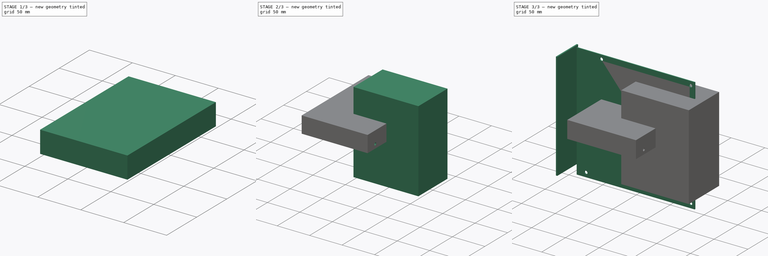
[diagram: build sequence overview — one tinted view per stage of 3, left to right]
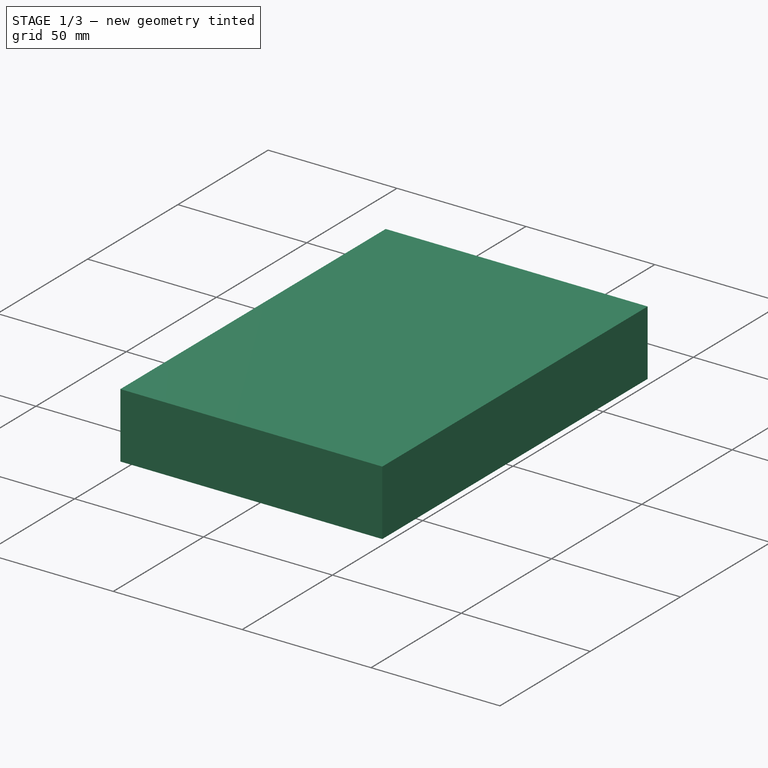
[diagram: stage 1 of 3 — iso view after this stage's code; geometry added in this stage tinted green]
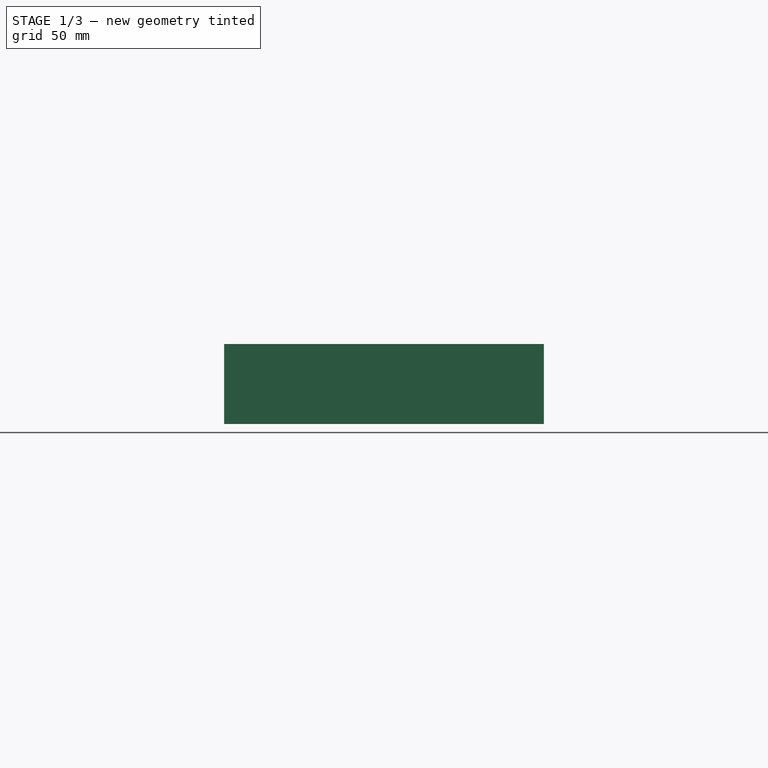
[diagram: stage 1 of 3 — front view after this stage's code; geometry added in this stage tinted green]
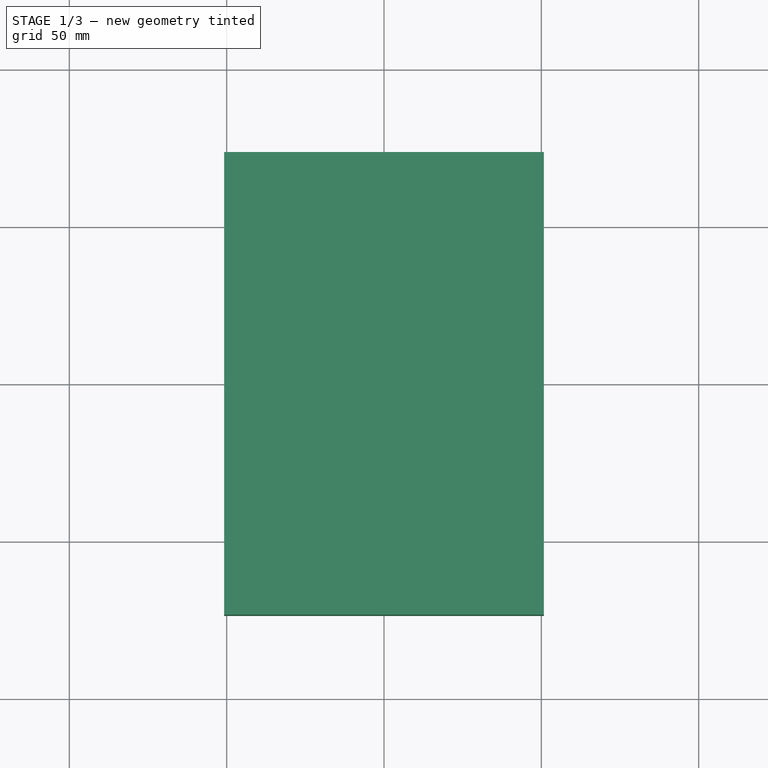
[diagram: stage 1 of 3 — top view after this stage's code; geometry added in this stage tinted green]
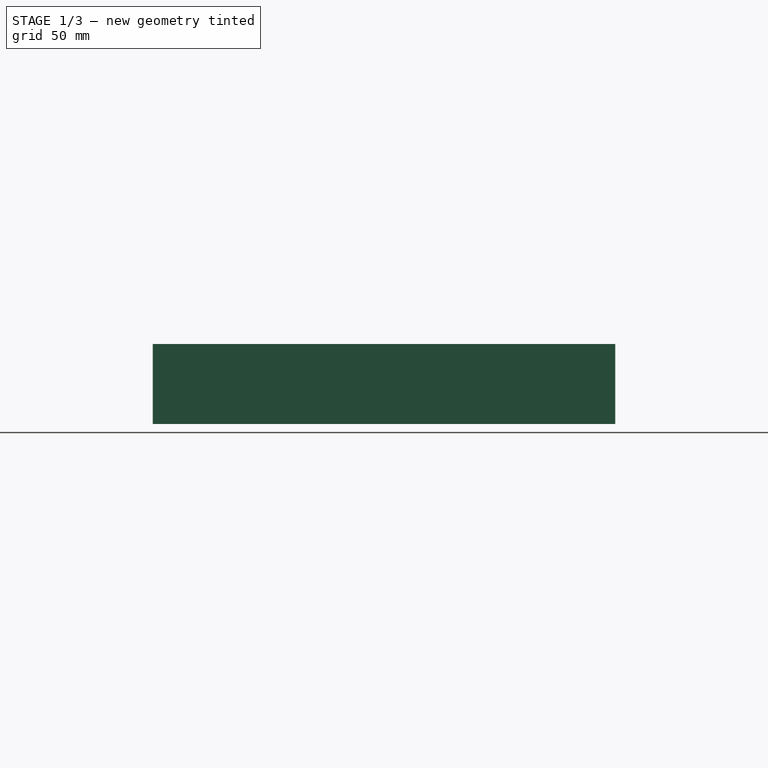
[diagram: stage 1 of 3 — right view after this stage's code; geometry added in this stage tinted green]
FCSTD DOCUMENT  (FreeCAD 1.0RUnknown)
Label: Components
License: All rights reserved
LicenseURL: https://en.wikipedia.org/wiki/All_rights_reserved
objects: Sketcher::SketchObject×7, PartDesign::Pad×4, PartDesign::Body×3, PartDesign::Pocket×3
note: 38 computed .brp shape members not serialized (recipe doc carries the construction recipe); baked Part::Feature solids carry a one-line shape summary decoded from their .brp

FEATURE [PartDesign::Body] Body009  label="PSU"
  AllowCompound = false
  Group = -> [Sketch042,Pad017,Sketch043,Pocket]
  Origin = -> Origin009
  Placement = pos=(0,0,2.59e-14) rot=(0,0,1;0rad)
  Tip = -> Pocket
FEATURE [Sketcher::SketchObject] Sketch044
  ArcFitTolerance = 1e-06
  AttachmentSupport = -> [XY_Plane010]
  FullyConstrained = true
  MakeInternals = false
  MapMode = 5
  sketch-geometry (5):
    g0: LineSegment StartX=-50.8 StartY=-73.5 StartZ=0 EndX=50.8 EndY=-73.5 EndZ=0
    g1: LineSegment StartX=50.8 StartY=-73.5 StartZ=0 EndX=50.8 EndY=73.5 EndZ=0
    g2: LineSegment StartX=50.8 StartY=73.5 StartZ=0 EndX=-50.8 EndY=73.5 EndZ=0
    g3: LineSegment StartX=-50.8 StartY=73.5 StartZ=0 EndX=-50.8 EndY=-73.5 EndZ=0
    g4: GeomPoint [constr] X=0 Y=0 Z=0
  constraints (12):
    c: Coincident(g0,g1)
    c: Coincident(g1,g2)
    c: Coincident(g2,g3)
    c: Coincident(g3,g0)
    c: Horizontal(g0)
    c: Horizontal(g2)
    c: Vertical(g1)
    c: Vertical(g3)
    c: Symmetric(g2,g0,g4)
    c: Distance(g1,g3) = 101.6
    c: Distance(g0,g2) = 147
    c: Coincident(g4,g-1)
FEATURE [PartDesign::Pad] Pad018
  Direction = (0,0,1)
  Length = 25.4
  Length2 = 10
  Profile = -> Sketch044
  ReferenceAxis = -> Sketch044 [N_Axis]
  Refine = true
  Suppressed = false
  Type = 0
FEATURE [Sketcher::SketchObject] Sketch045
  ArcFitTolerance = 1e-06
  AttachmentSupport = -> [Pad018]
  ExternalGeometry = -> [Pad018]
  FullyConstrained = false
  MakeInternals = false
  MapMode = 5
  Placement = pos=(0,73.5,0) rot=(0,0.707107,0.707107;3.14159rad)
  sketch-geometry (4):
    g0: LineSegment StartX=-42.6059 StartY=0 StartZ=0 EndX=3.18843 EndY=0 EndZ=0
    g1: LineSegment StartX=3.18843 StartY=0 StartZ=0 EndX=3.18843 EndY=8.48865 EndZ=0
    g2: LineSegment StartX=3.18843 StartY=8.48865 StartZ=0 EndX=-42.6059 EndY=8.48865 EndZ=0
    g3: LineSegment StartX=-42.6059 StartY=8.48865 StartZ=0 EndX=-42.6059 EndY=0 EndZ=0
  constraints (9):
    c: Coincident(g0,g1)
    c: Coincident(g1,g2)
    c: Coincident(g2,g3)
    c: Coincident(g3,g0)
    c: Horizontal(g0)
    c: Horizontal(g2)
    c: Vertical(g1)
    c: Vertical(g3)
    c: PointOnObject(g0,g-3)
FEATURE [PartDesign::Pocket] Pocket001
  BaseFeature = -> Pad018
  Direction = (0,-1,2e-16)
  Length = 5
  Length2 = 5
  Profile = -> Sketch045
  ReferenceAxis = -> Sketch045 [N_Axis]
  Refine = true
  Suppressed = false
  Type = 0
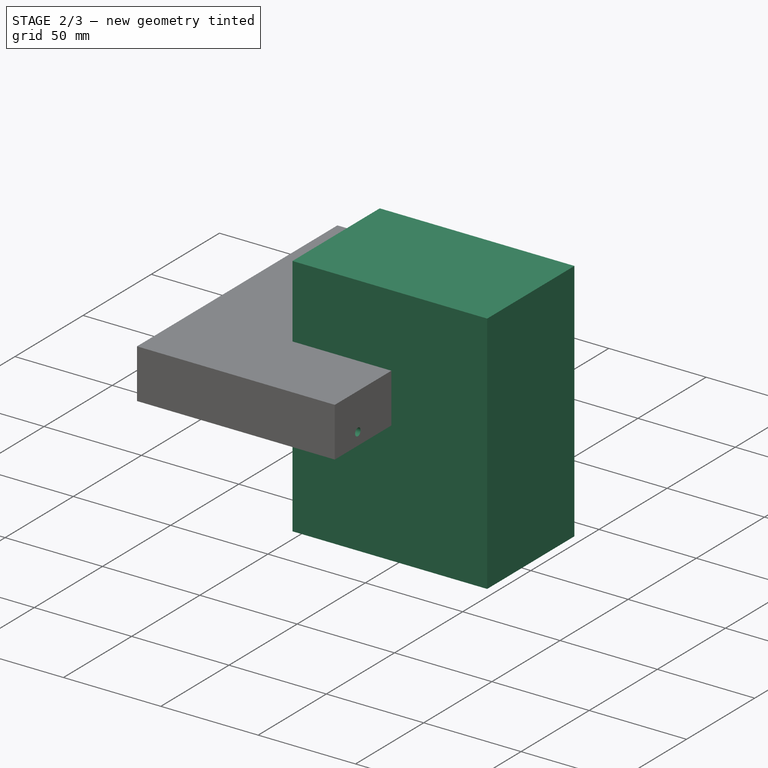
[diagram: stage 2 of 3 — iso view after this stage's code; geometry added in this stage tinted green]
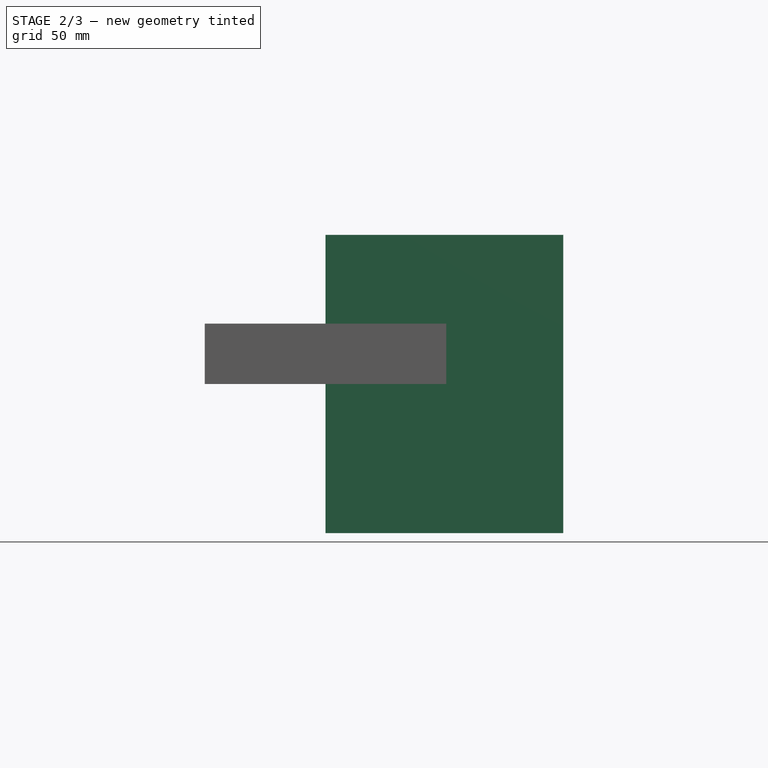
[diagram: stage 2 of 3 — front view after this stage's code; geometry added in this stage tinted green]
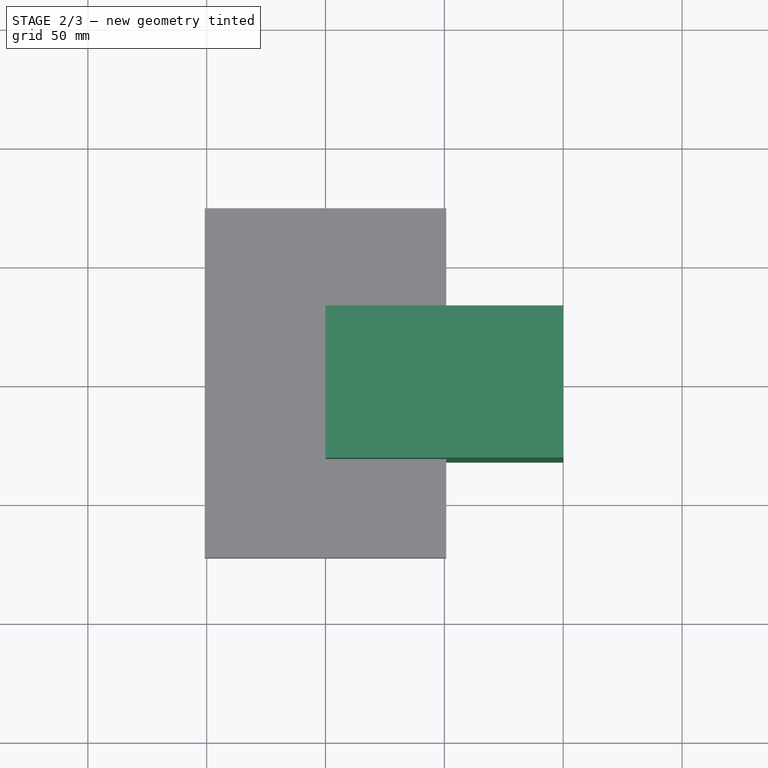
[diagram: stage 2 of 3 — top view after this stage's code; geometry added in this stage tinted green]
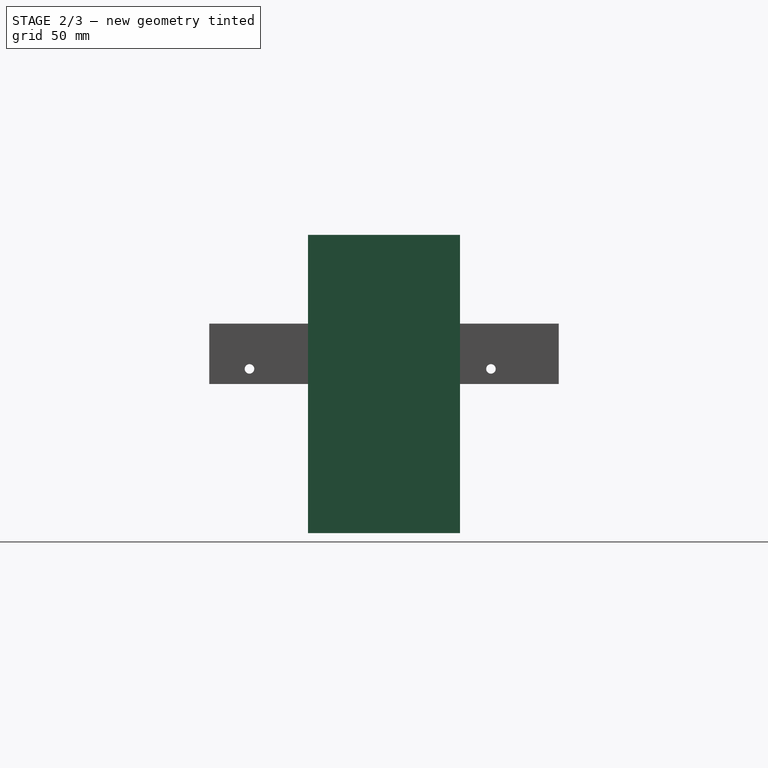
[diagram: stage 2 of 3 — right view after this stage's code; geometry added in this stage tinted green]
FEATURE [PartDesign::Body] Body  label="MoBo"
  AllowCompound = false
  Group = -> [Sketch,Pad,Sketch001,Pad001]
  Origin = -> Origin
  Tip = -> Pad001
FEATURE [Sketcher::SketchObject] Sketch042
  ArcFitTolerance = 1e-06
  AttachmentSupport = -> [YZ_Plane009]
  FullyConstrained = true
  MakeInternals = false
  MapMode = 5
  Placement = pos=(0,0,0) rot=(0.57735,0.57735,0.57735;2.0944rad)
  sketch-geometry (6):
    g0: LineSegment StartX=-32 StartY=-62.75 StartZ=0 EndX=32 EndY=-62.75 EndZ=0
    g1: LineSegment StartX=32 StartY=-62.75 StartZ=0 EndX=32 EndY=62.75 EndZ=0
    g2: LineSegment StartX=32 StartY=62.75 StartZ=0 EndX=-32 EndY=62.75 EndZ=0
    g3: LineSegment StartX=-32 StartY=62.75 StartZ=0 EndX=-32 EndY=-62.75 EndZ=0
    g4: GeomPoint [constr] X=0 Y=0 Z=0
    g5: GeomPoint [constr] X=0 Y=0 Z=0
  constraints (13):
    c: Coincident(g0,g1)
    c: Coincident(g1,g2)
    c: Coincident(g2,g3)
    c: Coincident(g3,g0)
    c: Horizontal(g0)
    c: Horizontal(g2)
    c: Vertical(g1)
    c: Vertical(g3)
    c: Symmetric(g2,g0,g4)
    c: Distance(g1,g3) = 64
    c: Distance(g0,g2) = 125.5
    c: Coincident(g4,g-1)
    c: Coincident(g5,g4)
FEATURE [PartDesign::Pad] Pad017
  Direction = (1,0,0)
  Length = 100
  Length2 = 10
  Placement = pos=(0,0,0) rot=(1,1,1;2.0944rad)
  Profile = -> Sketch042
  ReferenceAxis = -> Sketch042 [N_Axis]
  Refine = true
  Suppressed = false
  Type = 0
FEATURE [Sketcher::SketchObject] Sketch043
  ArcFitTolerance = 1e-06
  AttachmentSupport = -> [Pad017]
  FullyConstrained = true
  MakeInternals = false
  MapMode = 5
  Placement = pos=(0,0,0) rot=(0.57735,0.57735,-0.57735;4.18879rad)
  sketch-geometry (9):
    g0: LineSegment [constr] StartX=-25.65 StartY=-56.5 StartZ=0 EndX=25.65 EndY=-56.5 EndZ=0
    g1: LineSegment [constr] StartX=25.65 StartY=-56.5 StartZ=0 EndX=25.65 EndY=56.5 EndZ=0
    g2: LineSegment [constr] StartX=25.65 StartY=56.5 StartZ=0 EndX=-25.65 EndY=56.5 EndZ=0
    g3: LineSegment [constr] StartX=-25.65 StartY=56.5 StartZ=0 EndX=-25.65 EndY=-56.5 EndZ=0
    g4: GeomPoint [constr] X=0 Y=0 Z=0
    g5: Circle CenterX=-25.65 CenterY=-56.5 CenterZ=0 NormalX=0 NormalY=0 NormalZ=1 AngleXU=0 Radius=2
    g6: Circle CenterX=25.65 CenterY=-56.5 CenterZ=0 NormalX=0 NormalY=0 NormalZ=1 AngleXU=0 Radius=2
    g7: Circle CenterX=25.65 CenterY=56.5 CenterZ=0 NormalX=0 NormalY=0 NormalZ=1 AngleXU=0 Radius=2
    g8: Circle CenterX=-25.65 CenterY=56.5 CenterZ=0 NormalX=0 NormalY=0 NormalZ=1 AngleXU=0 Radius=2
  constraints (20):
    c: Coincident(g0,g1)
    c: Coincident(g1,g2)
    c: Coincident(g2,g3)
    c: Coincident(g3,g0)
    c: Horizontal(g0)
    c: Horizontal(g2)
    c: Vertical(g1)
    c: Vertical(g3)
    c: Symmetric(g2,g0,g4)
    c: Distance(g1,g3) = 51.3
    c: Distance(g0,g2) = 113
    c: Coincident(g4,g-1)
    c: Diameter(g5) = 4
    c: Coincident(g5,g0)
    c: Coincident(g6,g0)
    c: Coincident(g7,g1)
    c: Coincident(g8,g2)
    c: Equal(g8,g7)
    c: Equal(g7,g6)
    c: Equal(g6,g5)
FEATURE [PartDesign::Pocket] Pocket
  BaseFeature = -> Pad017
  Direction = (1,0,0)
  Length = 5
  Length2 = 5
  Placement = pos=(0,0,0) rot=(1,1,1;2.0944rad)
  Profile = -> Sketch043
  ReferenceAxis = -> Sketch043 [N_Axis]
  Refine = true
  Suppressed = false
  Type = 0
FEATURE [Sketcher::SketchObject] Sketch046
  ArcFitTolerance = 1e-06
  AttachmentSupport = -> [Pocket001]
  ExternalGeometry = -> [Pocket001]
  FullyConstrained = true
  MakeInternals = false
  MapMode = 5
  Placement = pos=(-50.8,0,0) rot=(0.57735,-0.57735,-0.57735;2.0944rad)
  sketch-geometry (3):
    g0: LineSegment [constr] StartX=-45 StartY=6.35 StartZ=0 EndX=56.6 EndY=6.35 EndZ=0
    g1: Circle CenterX=-45 CenterY=6.35 CenterZ=0 NormalX=0 NormalY=0 NormalZ=1 AngleXU=0 Radius=2
    g2: Circle CenterX=56.6 CenterY=6.35 CenterZ=0 NormalX=0 NormalY=0 NormalZ=1 AngleXU=0 Radius=2
  constraints (8):
    c: Horizontal(g0)
    c: DistanceY(g-3,g0) = 6.35
    c: DistanceX(g-3,g0) = 28.5
    c: DistanceX(g0,g0) = 101.6
    c: Diameter(g1) = 4
    c: Coincident(g1,g0)
    c: Diameter(g2) = 4
    c: Coincident(g2,g0)
FEATURE [PartDesign::Pocket] Pocket002
  BaseFeature = -> Pocket001
  Direction = (1,0,0)
  Length = 5
  Length2 = 5
  Profile = -> Sketch046
  ReferenceAxis = -> Sketch046 [N_Axis]
  Refine = true
  Suppressed = false
  Type = 1
FEATURE [PartDesign::Body] Body010  label="HDD"
  AllowCompound = false
  Group = -> [Sketch044,Pad018,Sketch045,Pocket001,Sketch046,Pocket002]
  Origin = -> Origin010
  Tip = -> Pocket002
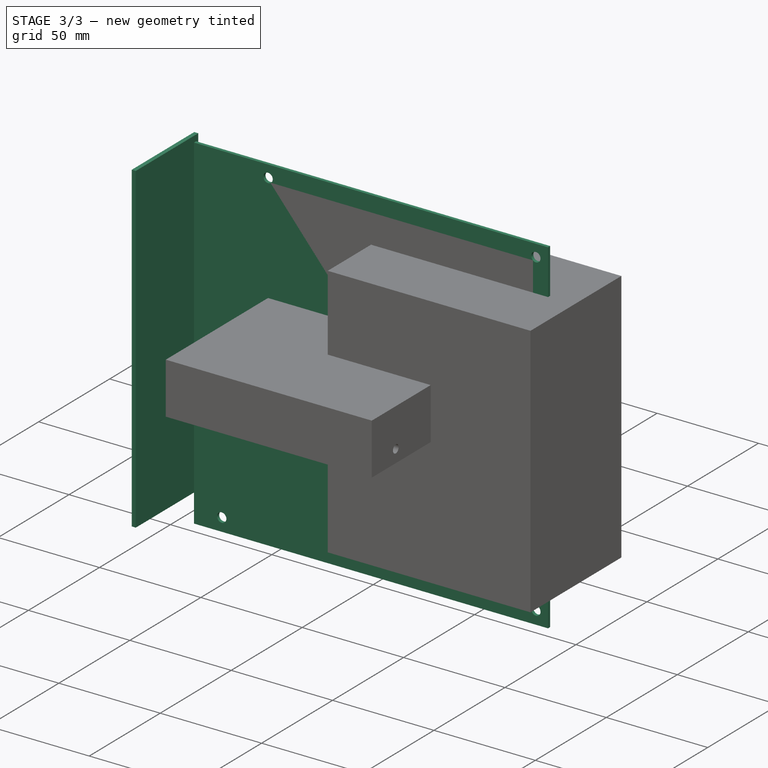
[diagram: stage 3 of 3 — iso view after this stage's code; geometry added in this stage tinted green]
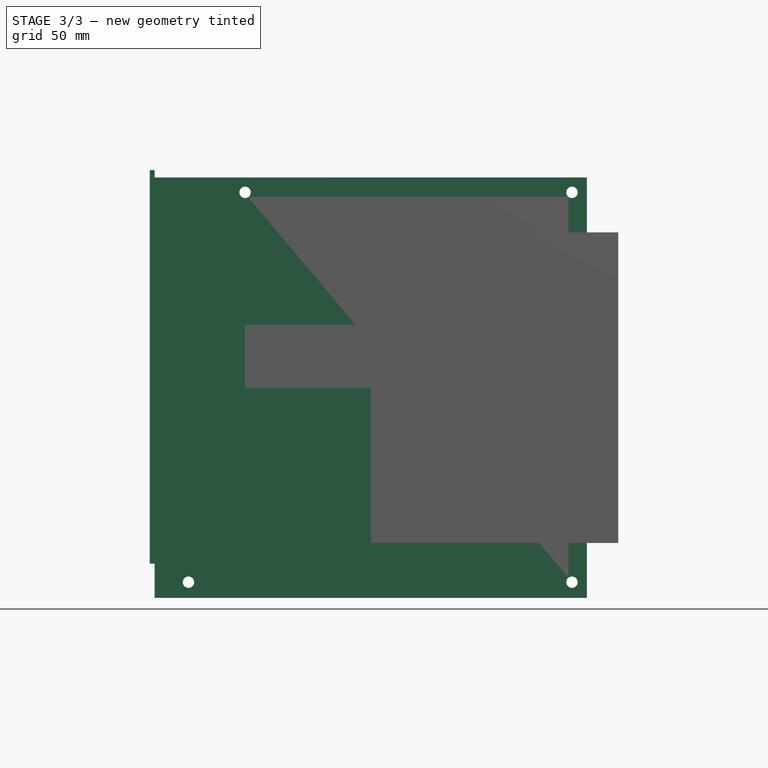
[diagram: stage 3 of 3 — front view after this stage's code; geometry added in this stage tinted green]
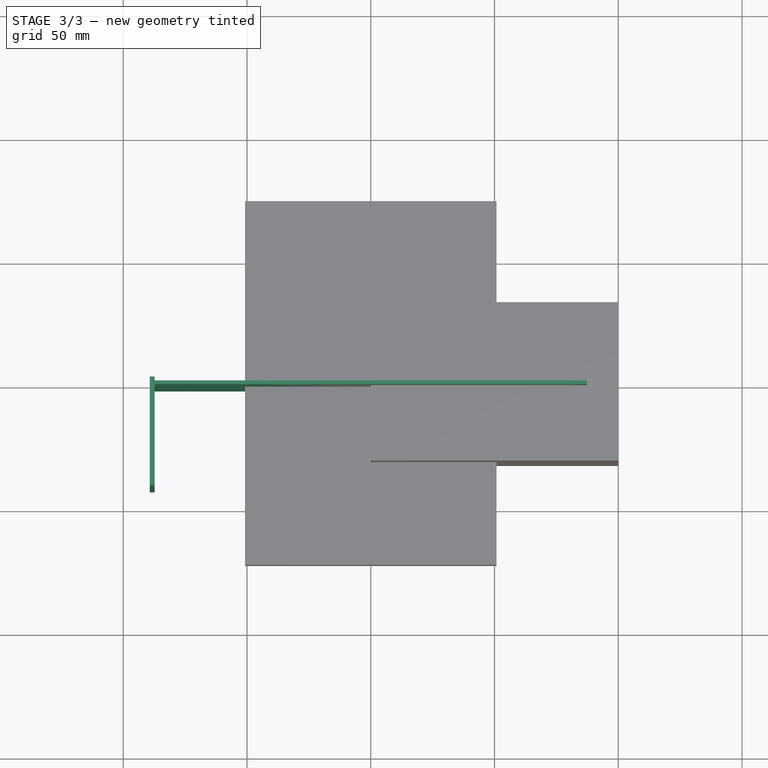
[diagram: stage 3 of 3 — top view after this stage's code; geometry added in this stage tinted green]
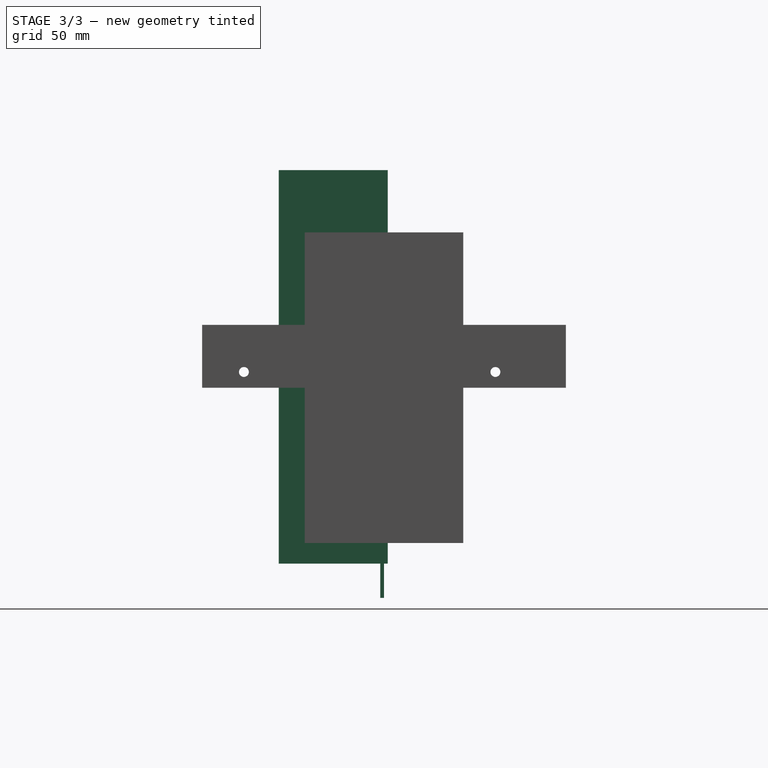
[diagram: stage 3 of 3 — right view after this stage's code; geometry added in this stage tinted green]
FEATURE [Sketcher::SketchObject] Sketch
  ArcFitTolerance = 1e-06
  AttachmentSupport = -> [XZ_Plane]
  FullyConstrained = true
  MakeInternals = false
  MapMode = 5
  Placement = pos=(0,0,0) rot=(1,0,0;1.5708rad)
  sketch-geometry (13):
    g0: LineSegment StartX=-87.3 StartY=-84.925 StartZ=0 EndX=87.3 EndY=-84.925 EndZ=0
    g1: LineSegment StartX=87.3 StartY=-84.925 StartZ=0 EndX=87.3 EndY=84.925 EndZ=0
    g2: LineSegment StartX=87.3 StartY=84.925 StartZ=0 EndX=-87.3 EndY=84.925 EndZ=0
    g3: LineSegment StartX=-87.3 StartY=84.925 StartZ=0 EndX=-87.3 EndY=-84.925 EndZ=0
    g4: GeomPoint [constr] X=0 Y=0 Z=0
    g5: Circle CenterX=-73.64 CenterY=-78.575 CenterZ=0 NormalX=0 NormalY=0 NormalZ=1 AngleXU=0 Radius=2.3
    g6: Circle CenterX=81.3 CenterY=-78.575 CenterZ=0 NormalX=0 NormalY=0 NormalZ=1 AngleXU=0 Radius=2.3
    g7: Circle CenterX=81.3 CenterY=78.925 CenterZ=0 NormalX=0 NormalY=0 NormalZ=1 AngleXU=0 Radius=2.3
    g8: Circle CenterX=-50.78 CenterY=78.925 CenterZ=0 NormalX=0 NormalY=0 NormalZ=1 AngleXU=0 Radius=2.3
    g9: LineSegment [constr] StartX=81.3 StartY=78.925 StartZ=0 EndX=-73.64 EndY=78.925 EndZ=0
    g10: LineSegment [constr] StartX=-73.64 StartY=78.925 StartZ=0 EndX=-73.64 EndY=-78.575 EndZ=0
    g11: LineSegment [constr] StartX=-73.64 StartY=-78.575 StartZ=0 EndX=81.3 EndY=-78.575 EndZ=0
    g12: LineSegment [constr] StartX=81.3 StartY=-78.575 StartZ=0 EndX=81.3 EndY=78.925 EndZ=0
  constraints (33):
    c: Coincident(g0,g1)
    c: Coincident(g1,g2)
    c: Coincident(g2,g3)
    c: Coincident(g3,g0)
    c: Horizontal(g0)
    c: Horizontal(g2)
    c: Vertical(g1)
    c: Vertical(g3)
    c: Symmetric(g2,g0,g4)
    c: Coincident(g4,g-1)
    c: Diameter(g5) = 4.6
    c: Equal(g5,g6)
    c: Equal(g6,g7)
    c: Equal(g7,g8)
    c: Coincident(g9,g10)
    c: Coincident(g10,g11)
    c: Coincident(g11,g12)
    c: Coincident(g12,g9)
    c: Horizontal(g9)
    c: Horizontal(g11)
    c: Vertical(g10)
    c: Vertical(g12)
    c: Coincident(g9,g7)
    c: Coincident(g10,g5)
    c: Coincident(g6,g11)
    c: PointOnObject(g8,g9)
    c: DistanceY(g12,g12) = 157.5
    c: DistanceX(g11,g11) = 154.94
    c: DistanceX(g9,g8) = 22.86
    c: Distance(g5,g3) = 13.66
    c: Distance(g5,g0) = 6.35
    c: Distance(g6,g1) = 6
    c: Distance(g7,g2) = 6
FEATURE [PartDesign::Pad] Pad
  Direction = (0,-1,2e-16)
  Length = 1.5
  Length2 = 10
  Placement = pos=(0,0,0) rot=(1,0,0;1.5708rad)
  Profile = -> Sketch
  ReferenceAxis = -> Sketch [N_Axis]
  Refine = true
  Suppressed = false
  Type = 0
FEATURE [Sketcher::SketchObject] Sketch001
  ArcFitTolerance = 1e-06
  AttachmentSupport = -> [Pad]
  ExternalGeometry = -> [Pad]
  FullyConstrained = true
  MakeInternals = false
  MapMode = 5
  Placement = pos=(-87.3,0,0) rot=(0.707107,0,-0.707107;3.14159rad)
  sketch-geometry (5):
    g0: LineSegment StartX=-87.925 StartY=42.5 StartZ=0 EndX=-87.925 EndY=-1.5 EndZ=0
    g1: LineSegment StartX=-87.925 StartY=-1.5 StartZ=0 EndX=71.075 EndY=-1.5 EndZ=0
    g2: LineSegment StartX=71.075 StartY=-1.5 StartZ=0 EndX=71.075 EndY=42.5 EndZ=0
    g3: LineSegment StartX=71.075 StartY=42.5 StartZ=0 EndX=-87.925 EndY=42.5 EndZ=0
    g4: GeomPoint X=78.575 Y=1.74e-14 Z=0
  constraints (13):
    c: Coincident(g0,g1)
    c: Coincident(g1,g2)
    c: Coincident(g2,g3)
    c: Coincident(g3,g0)
    c: Vertical(g0)
    c: Vertical(g2)
    c: Horizontal(g1)
    c: Horizontal(g3)
    c: Symmetric(g-4,g-4,g4)
    c: Distance(g4,g2) = 7.5
    c: Distance(g1,g-3) = 1.5
    c: DistanceY(g0,g0) = 44
    c: DistanceX(g3,g3) = 159
FEATURE [PartDesign::Pad] Pad001
  BaseFeature = -> Pad
  Direction = (-1,0,-2e-16)
  Length = 2
  Length2 = 10
  Placement = pos=(0,0,0) rot=(1,0,0;1.5708rad)
  Profile = -> Sketch001
  ReferenceAxis = -> Sketch001 [N_Axis]
  Refine = true
  Suppressed = false
  Type = 0
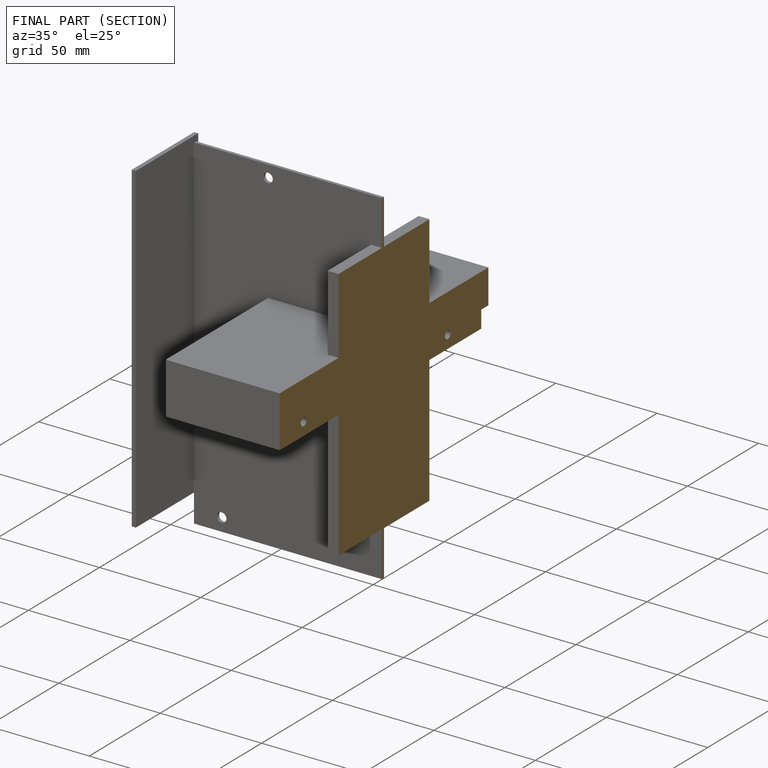
[diagram: finished part — half-section view (interior)]
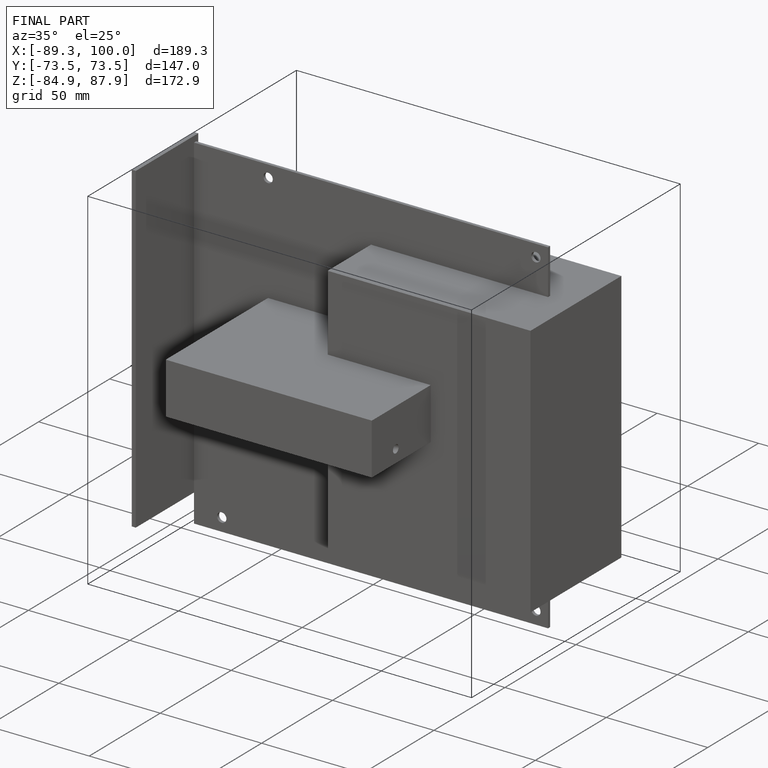
[diagram: finished part — iso view with bounding-box wireframe]
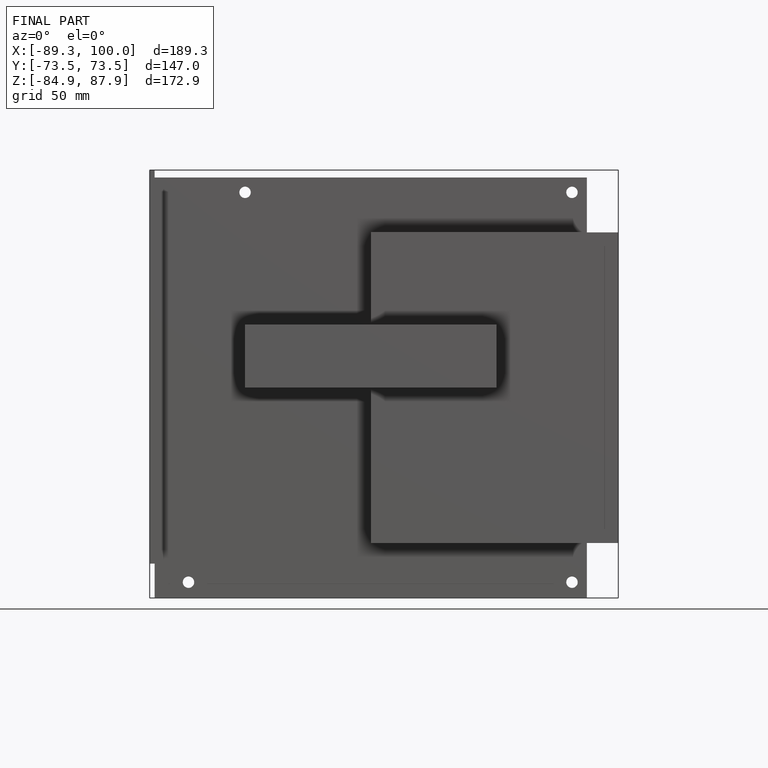
[diagram: finished part — front view with bounding-box wireframe]
